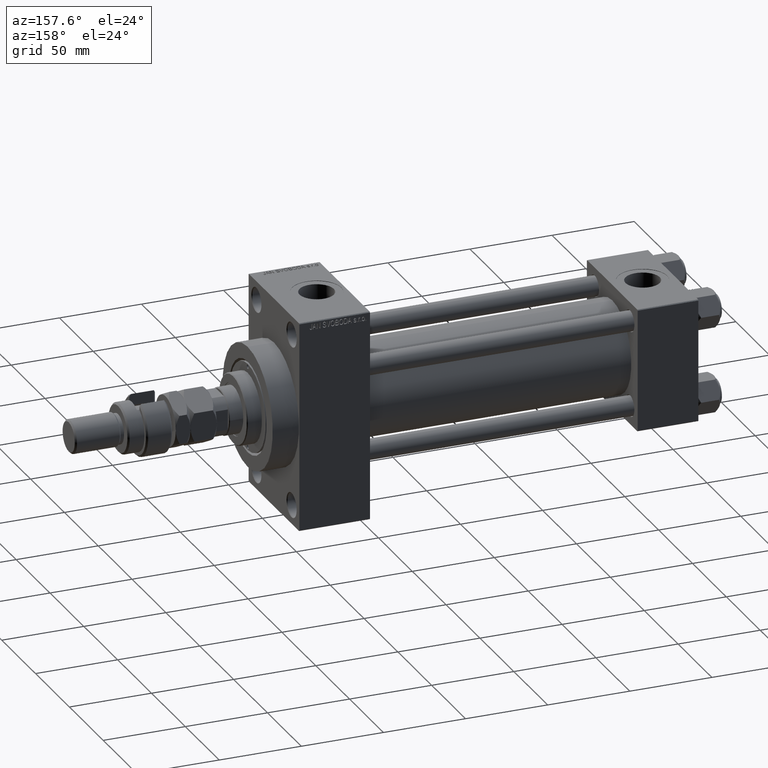
[diagram: clean part render]
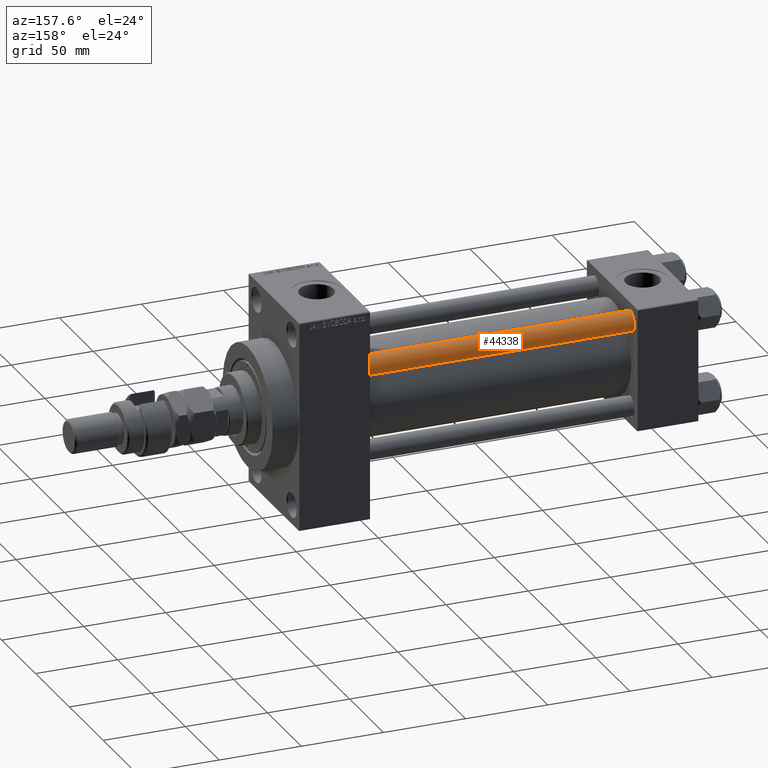
[diagram: same view with one face highlighted and labeled with its STEP entity id]
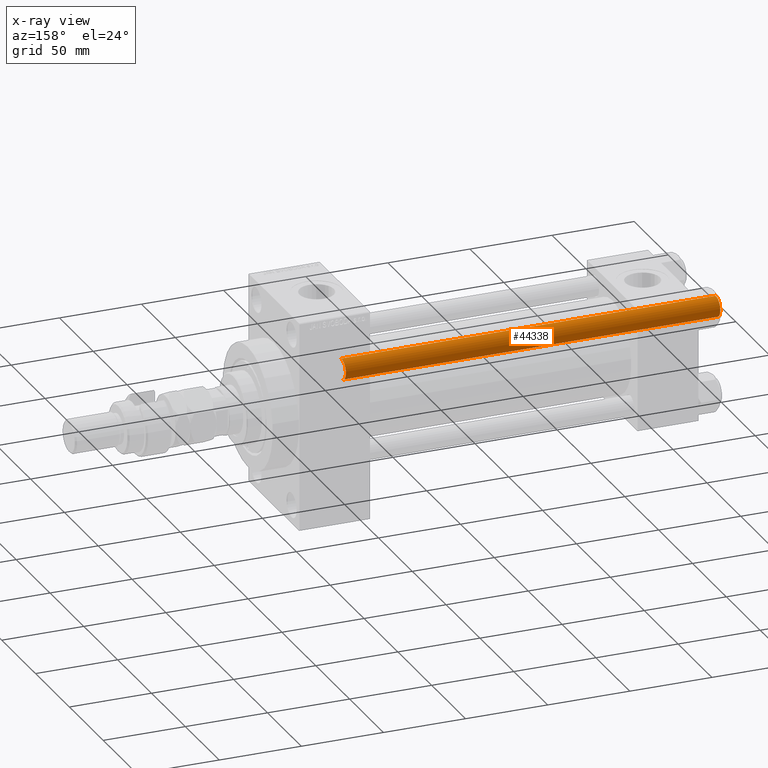
[diagram: x-ray of the same camera — body ghosted, the highlighted face saturated]
A machine part, auxiliary view. The second image highlights one B-rep face of the part: STEP entity #44338.
The next image is the same camera in x-ray: the body ghosted, the highlighted face saturated — about 0% of this face is hidden behind the body in this view.
In plain terms, the highlighted cylindrical surface (edge-blend (fillet) strip) has radius 6 mm, axis along (-1, -0, 0).
Its self-contained STEP definition (entity closure, byte-faithful):
#595 = CARTESIAN_POINT ( 'NONE',  ( -6.000000000000000888, 0.000000000000000000, 228.5000000000001137 ) ) ;
#824 = CARTESIAN_POINT ( 'NONE',  ( 6.000000000000000888, 7.347880794884119736E-16, 0.5000000000001392220 ) ) ;
#849 = ORIENTED_EDGE ( 'NONE', *, *, #7370, .T. ) ;
#7370 = EDGE_CURVE ( 'NONE', #48887, #44524, #15923, .T. ) ;
#10079 = DIRECTION ( 'NONE',  ( 1.000000000000000000, 0.000000000000000000, 0.000000000000000000 ) ) ;
#11758 = LINE ( 'NONE', #16509, #45881 ) ;
#12518 = DIRECTION ( 'NONE',  ( -0.000000000000000000, -0.000000000000000000, -1.000000000000000000 ) ) ;
#14723 = ORIENTED_EDGE ( 'NONE', *, *, #25067, .T. ) ;
#14838 = DIRECTION ( 'NONE',  ( 1.000000000000000000, 0.000000000000000000, 0.000000000000000000 ) ) ;
#15239 = VERTEX_POINT ( 'NONE', #38286 ) ;
#15923 = CIRCLE ( 'NONE', #40301, 6.000000000000000888 ) ;
#16509 = CARTESIAN_POINT ( 'NONE',  ( -6.000000000000000888, 0.000000000000000000, 229.0000000000000000 ) ) ;
#17666 = CARTESIAN_POINT ( 'NONE',  ( 0.000000000000000000, 0.000000000000000000, 228.5000000000001137 ) ) ;
#20127 = CYLINDRICAL_SURFACE ( 'NONE', #48735, 6.000000000000000888 ) ;
#25067 = EDGE_CURVE ( 'NONE', #29877, #15239, #31101, .T. ) ;
#26225 = AXIS2_PLACEMENT_3D ( 'NONE', #30608, #38248, #14838 ) ;
#29877 = VERTEX_POINT ( 'NONE', #824 ) ;
#30608 = CARTESIAN_POINT ( 'NONE',  ( 0.000000000000000000, 0.000000000000000000, 0.5000000000001392220 ) ) ;
#30776 = CARTESIAN_POINT ( 'NONE',  ( 6.000000000000000888, 7.347880794884119736E-16, 228.5000000000001137 ) ) ;
#30857 = DIRECTION ( 'NONE',  ( -0.000000000000000000, -0.000000000000000000, -1.000000000000000000 ) ) ;
#31101 = CIRCLE ( 'NONE', #26225, 6.000000000000000888 ) ;
#31362 = LINE ( 'NONE', #42328, #45094 ) ;
#32184 = EDGE_CURVE ( 'NONE', #48887, #15239, #11758, .T. ) ;
#32589 = EDGE_CURVE ( 'NONE', #44524, #29877, #31362, .T. ) ;
#37478 = EDGE_LOOP ( 'NONE', ( #849, #49615, #14723, #42514 ) ) ;
#38248 = DIRECTION ( 'NONE',  ( -0.000000000000000000, -0.000000000000000000, 1.000000000000000000 ) ) ;
#38286 = CARTESIAN_POINT ( 'NONE',  ( -6.000000000000000888, 0.000000000000000000, 0.5000000000001392220 ) ) ;
#40301 = AXIS2_PLACEMENT_3D ( 'NONE', #17666, #44912, #10079 ) ;
#42328 = CARTESIAN_POINT ( 'NONE',  ( 6.000000000000000888, 7.347880794884119736E-16, 229.0000000000000000 ) ) ;
#42514 = ORIENTED_EDGE ( 'NONE', *, *, #32184, .F. ) ;
#42785 = DIRECTION ( 'NONE',  ( -0.000000000000000000, -0.000000000000000000, -1.000000000000000000 ) ) ;
#42797 = DIRECTION ( 'NONE',  ( -1.000000000000000000, 0.000000000000000000, 0.000000000000000000 ) ) ;
#44338 = ADVANCED_FACE ( 'NONE', ( #46607 ), #20127, .T. ) ;
#44524 = VERTEX_POINT ( 'NONE', #30776 ) ;
#44912 = DIRECTION ( 'NONE',  ( 0.000000000000000000, 0.000000000000000000, -1.000000000000000000 ) ) ;
#45094 = VECTOR ( 'NONE', #30857, 1000.000000000000000 ) ;
#45881 = VECTOR ( 'NONE', #42785, 1000.000000000000000 ) ;
#46607 = FACE_OUTER_BOUND ( 'NONE', #37478, .T. ) ;
#47373 = CARTESIAN_POINT ( 'NONE',  ( 0.000000000000000000, 0.000000000000000000, 229.0000000000000000 ) ) ;
#48735 = AXIS2_PLACEMENT_3D ( 'NONE', #47373, #12518, #42797 ) ;
#48887 = VERTEX_POINT ( 'NONE', #595 ) ;
#49615 = ORIENTED_EDGE ( 'NONE', *, *, #32589, .T. ) ;